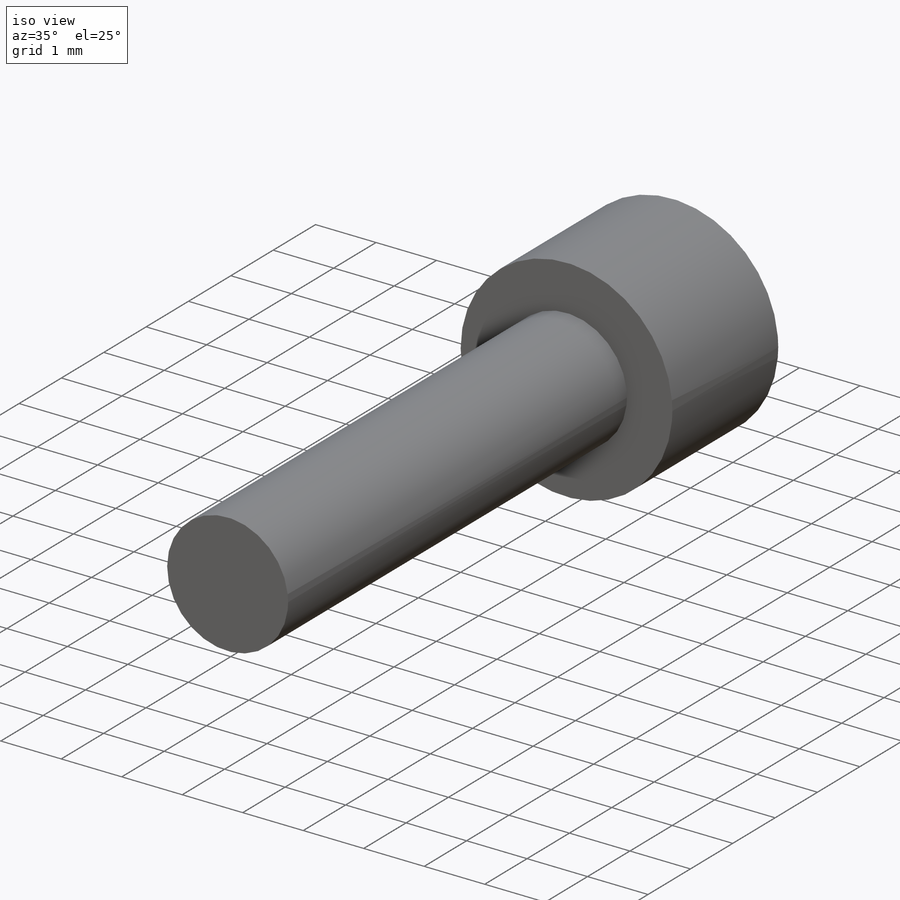
[diagram: iso view]
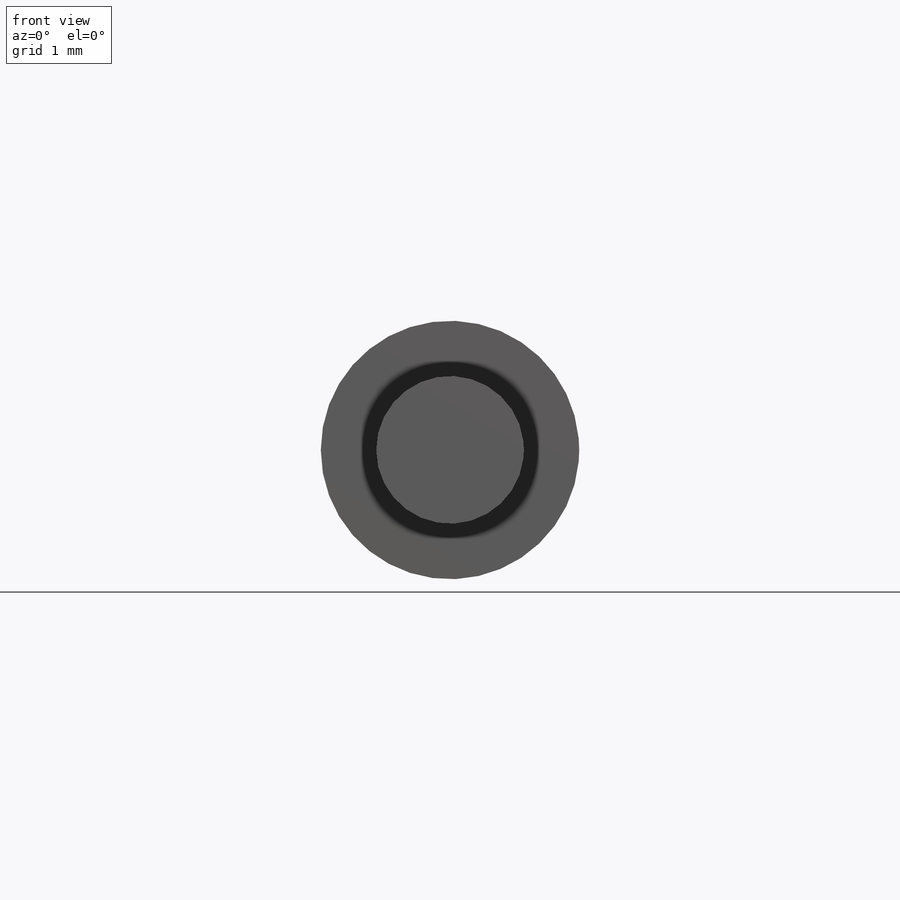
[diagram: front view]
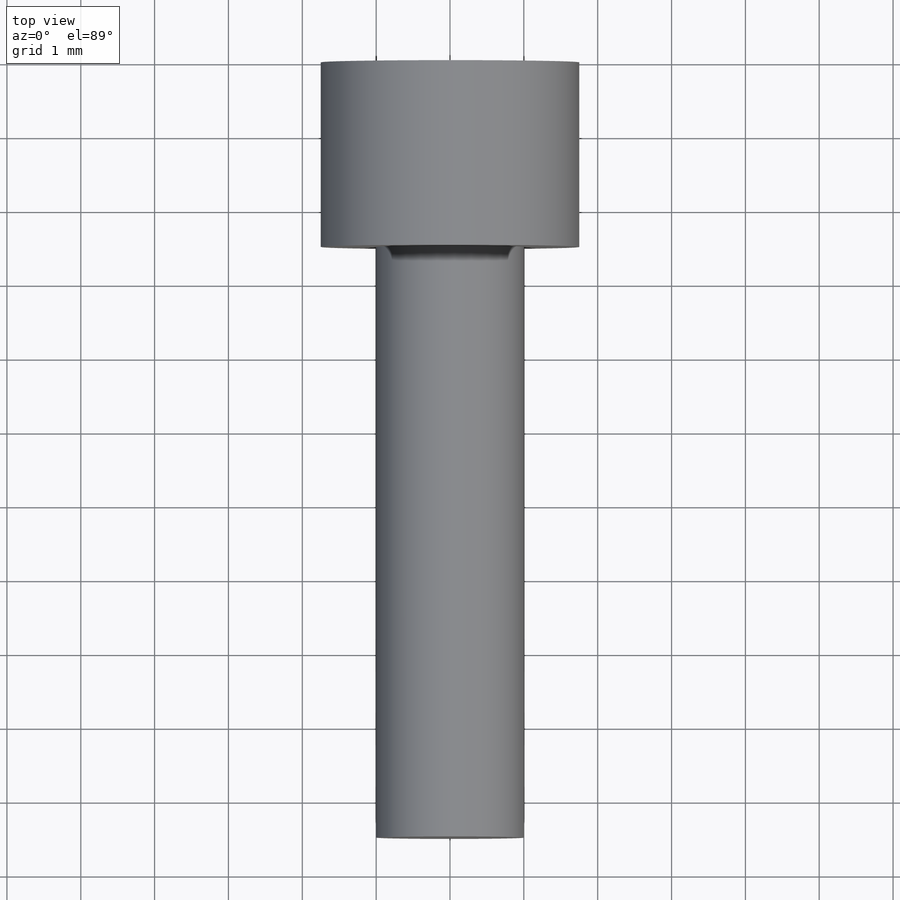
[diagram: top view]
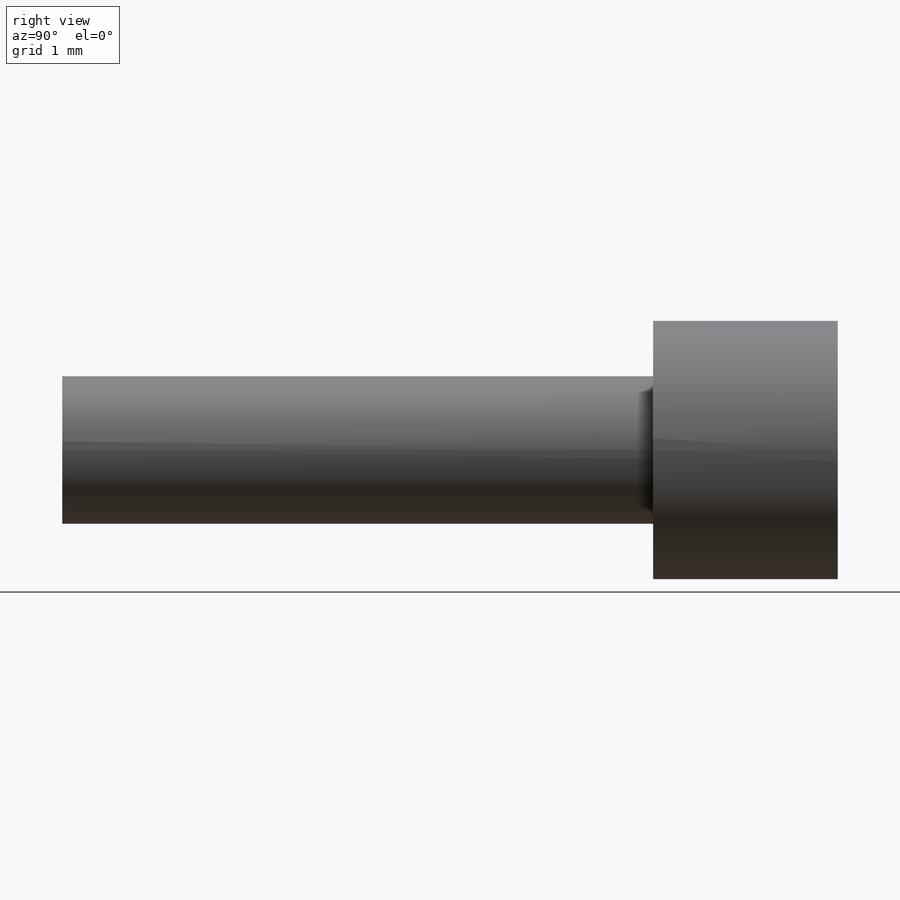
[diagram: right view]
SOLIDWORKS PART (.sldprt)
format: sldprt  version: not decoded by parser v0  size: 150,528 bytes
history: native  units: mm
features: plane x5, sketch x3, extrude x2, material x1, cut_extrude x1 (+8 scaffold rows collapsed)
feature tree (20):
  scaffold x8  (default folders/planes/origin — collapsed)
  material  "Material <sin especificar>"
  plane  "Alzado"
  plane  "Planta"
  plane  "Vista lateral"
  sketch  "Croquis1"  dims[D1=3.5mm]
  extrude  "Saliente-Extruir1"  Depth=2.5mm
  plane  "Plano1"  Offset=0mm
  sketch  "Croquis2"  dims[D1=2.0mm]
  extrude  "Saliente-Extruir2"  Depth=8mm
  plane  "Plano2"  Offset=0mm
  sketch  "Croquis3"  dims[D1=2.5mm]
  cut_extrude  "Cortar-Extruir1"  Depth=1.75mm
decode coverage: 6 of 6 modeling features carry decoded parameters
note: suppression state not decoded; provenance and decode notes live in map.json
